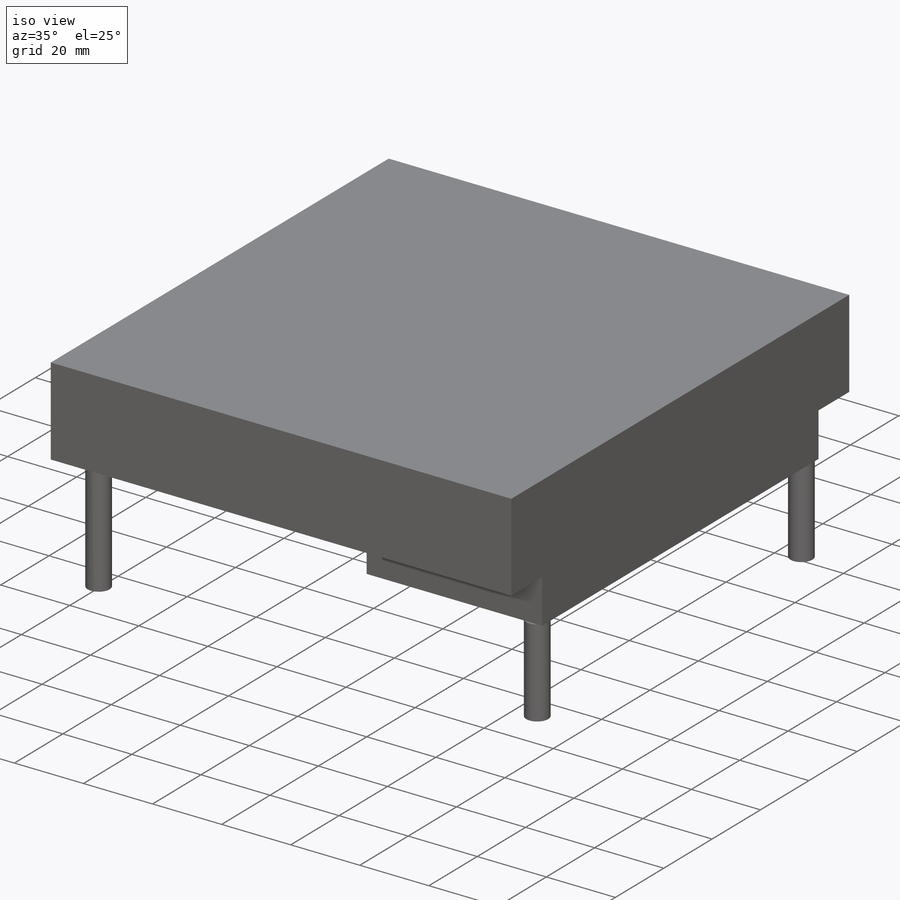
[diagram: iso view]
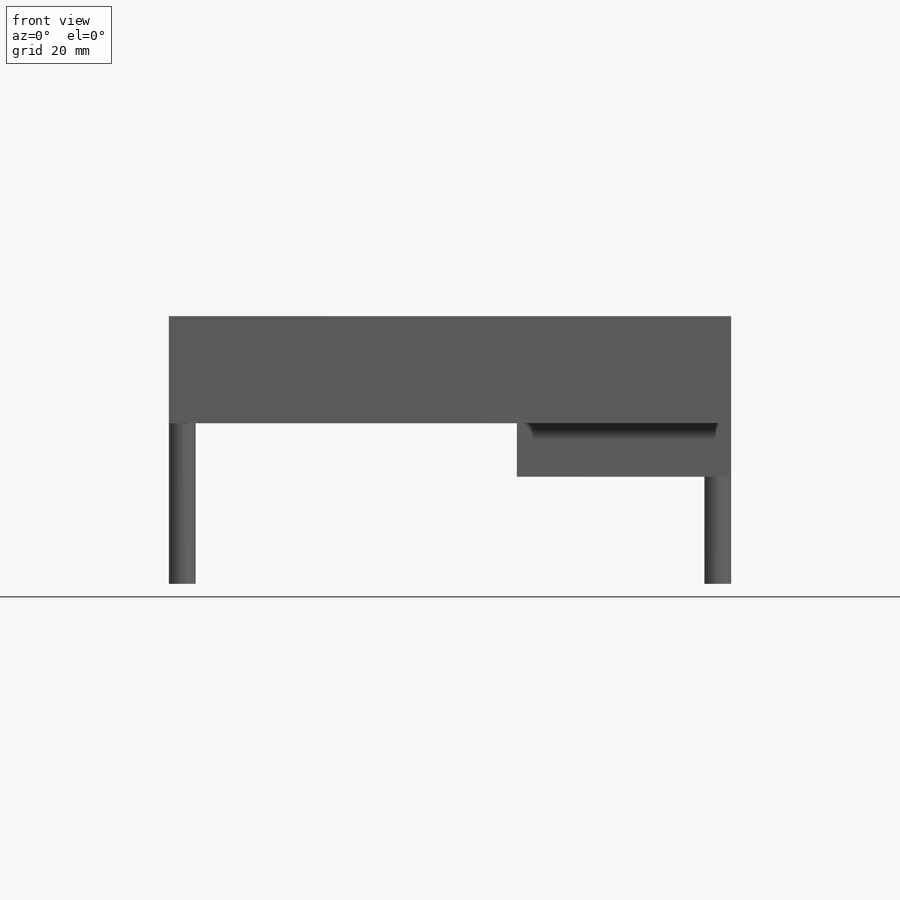
[diagram: front view]
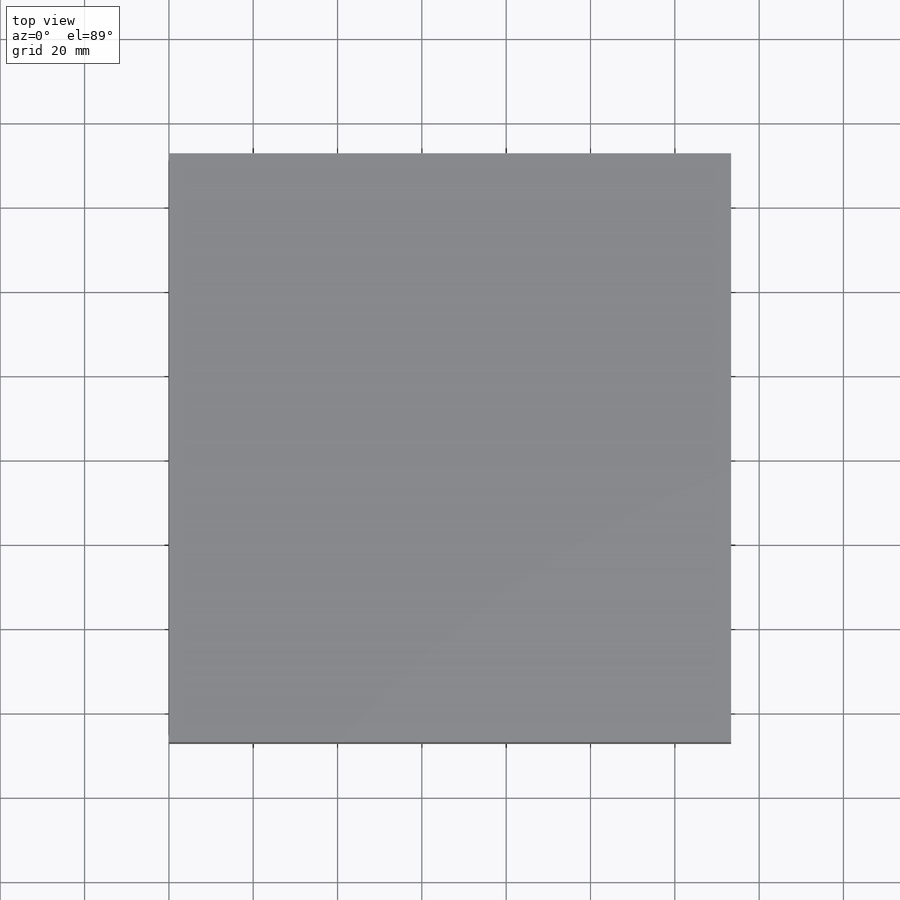
[diagram: top view]
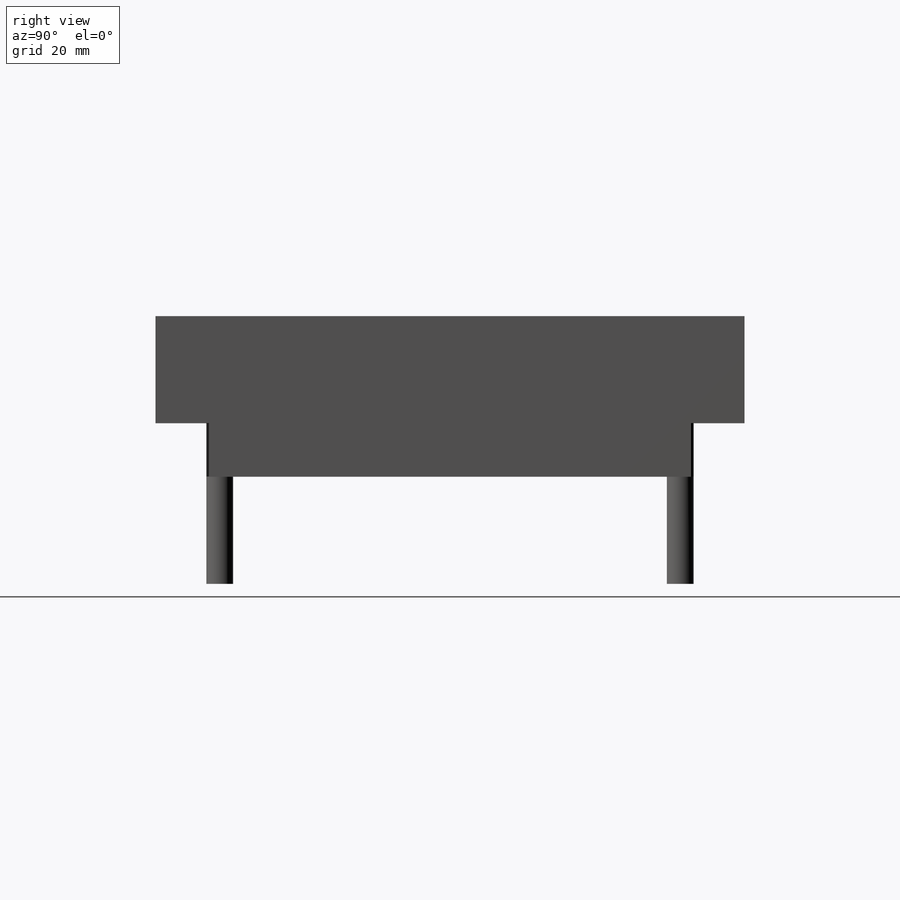
[diagram: right view]
SOLIDWORKS PART (.sldprt)
format: sldprt  version: not decoded by parser v0  size: 186,880 bytes
history: native  units: mm
features: sketch x6, extrude x6, material x1 (+11 scaffold rows collapsed)
feature tree (24):
  scaffold x11  (default folders/planes/origin — collapsed)
  material  "Material <not specified>"
  sketch  "Sketch1"  dims[D1=139.7mm D2=133.35mm]
  extrude  "Boss-Extrude1"  Depth=25.4mm
  sketch  "Sketch2"  dims[D1=12.7mm D2=12.7mm D3=50.8mm]
  extrude  "Boss-Extrude2"  Depth=12.7mm
  sketch  "Sketch3"  dims[D2=6.35mm D1=15.24mm D3=3.175mm]
  extrude  "Boss-Extrude3"  Depth=38.1mm
  sketch  "Sketch4"  dims[c1.D1=~14.821301mm c1.D3=6.35mm c2.D1=15.24mm c2.D2=3.175mm]
  extrude  "Boss-Extrude4"  Depth=38.1mm
  sketch  "Sketch5"  dims[D2=6.35mm D1=15.24mm D3=3.175mm]
  extrude  "Boss-Extrude5"  Depth=25.4mm
  sketch  "Sketch6"  dims[D2=6.35mm D1=15.24mm D3=3.175mm]
  extrude  "Boss-Extrude6"  Depth=25.4mm
decode coverage: 12 of 12 modeling features carry decoded parameters
note: ~ marks probable driven/reference dimensions
note: suppression state not decoded; provenance and decode notes live in map.json
